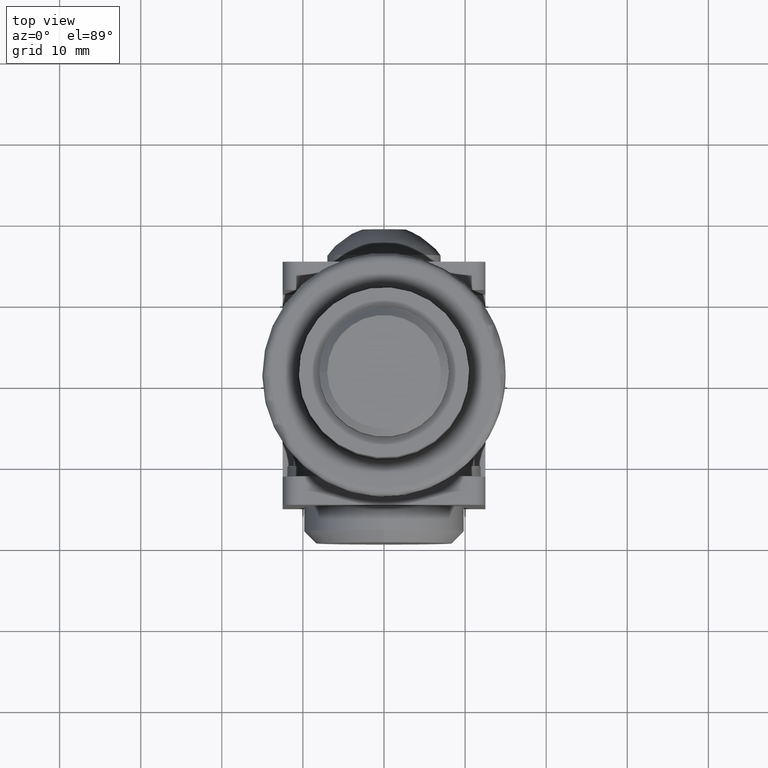
[diagram: clean part render]
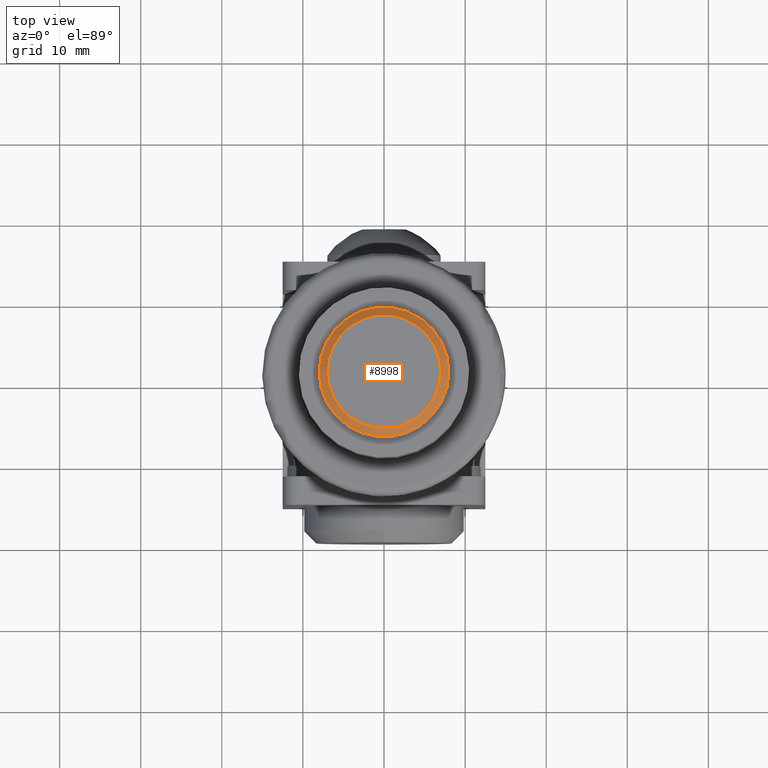
[diagram: same view with one face highlighted and labeled with its STEP entity id]
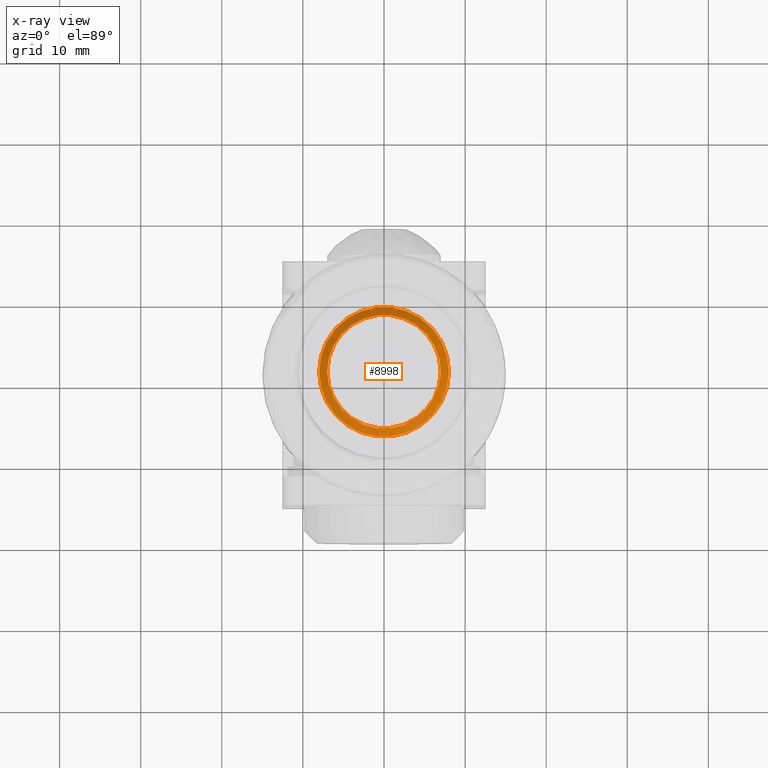
[diagram: x-ray of the same camera — body ghosted, the highlighted face saturated]
A machine part, top view. The second image highlights one B-rep face of the part: STEP entity #8998.
The next image is the same camera in x-ray: the body ghosted, the highlighted face saturated — about 0% of this face is hidden behind the body in this view.
In plain terms, the highlighted conical surface has half-angle 45 deg.
Its self-contained STEP definition (entity closure, byte-faithful):
#1611 = CIRCLE ( 'NONE', #11079, 6.999999999999978684 ) ;
#1730 = VERTEX_POINT ( 'NONE', #2338 ) ;
#1740 = DIRECTION ( 'NONE',  ( -0.000000000000000000, -0.000000000000000000, -1.000000000000000000 ) ) ;
#2338 = CARTESIAN_POINT ( 'NONE',  ( 6.999999999999978684, 0.000000000000000000, -55.75000000000000000 ) ) ;
#2480 = FACE_OUTER_BOUND ( 'NONE', #12582, .T. ) ;
#2566 = VERTEX_POINT ( 'NONE', #6589 ) ;
#2734 = EDGE_CURVE ( 'NONE', #2566, #2566, #13864, .T. ) ;
#3580 = EDGE_CURVE ( 'NONE', #1730, #1730, #1611, .T. ) ;
#4035 = DIRECTION ( 'NONE',  ( 1.000000000000000000, 0.000000000000000000, 0.000000000000000000 ) ) ;
#5836 = AXIS2_PLACEMENT_3D ( 'NONE', #9509, #8345, #11736 ) ;
#6589 = CARTESIAN_POINT ( 'NONE',  ( 8.000000000000000000, 0.000000000000000000, -54.75000000000000000 ) ) ;
#8188 = ORIENTED_EDGE ( 'NONE', *, *, #3580, .F. ) ;
#8286 = DIRECTION ( 'NONE',  ( 1.000000000000000000, 0.000000000000000000, 0.000000000000000000 ) ) ;
#8345 = DIRECTION ( 'NONE',  ( -0.000000000000000000, -0.000000000000000000, 1.000000000000000000 ) ) ;
#8430 = CARTESIAN_POINT ( 'NONE',  ( 0.000000000000000000, 0.000000000000000000, -55.75000000000000000 ) ) ;
#8949 = CONICAL_SURFACE ( 'NONE', #5836, 8.000000000000000000, 0.7853981633974587151 ) ;
#8998 = ADVANCED_FACE ( 'NONE', ( #9299, #2480 ), #8949, .T. ) ;
#9299 = FACE_BOUND ( 'NONE', #12530, .T. ) ;
#9509 = CARTESIAN_POINT ( 'NONE',  ( 0.000000000000000000, 0.000000000000000000, -54.75000000000000000 ) ) ;
#10607 = ORIENTED_EDGE ( 'NONE', *, *, #2734, .F. ) ;
#11079 = AXIS2_PLACEMENT_3D ( 'NONE', #8430, #1740, #8286 ) ;
#11417 = AXIS2_PLACEMENT_3D ( 'NONE', #13869, #11776, #4035 ) ;
#11736 = DIRECTION ( 'NONE',  ( 1.000000000000000000, 0.000000000000000000, 0.000000000000000000 ) ) ;
#11776 = DIRECTION ( 'NONE',  ( -0.000000000000000000, -0.000000000000000000, 1.000000000000000000 ) ) ;
#12530 = EDGE_LOOP ( 'NONE', ( #8188 ) ) ;
#12582 = EDGE_LOOP ( 'NONE', ( #10607 ) ) ;
#13864 = CIRCLE ( 'NONE', #11417, 8.000000000000000000 ) ;
#13869 = CARTESIAN_POINT ( 'NONE',  ( 0.000000000000000000, 0.000000000000000000, -54.75000000000000000 ) ) ;